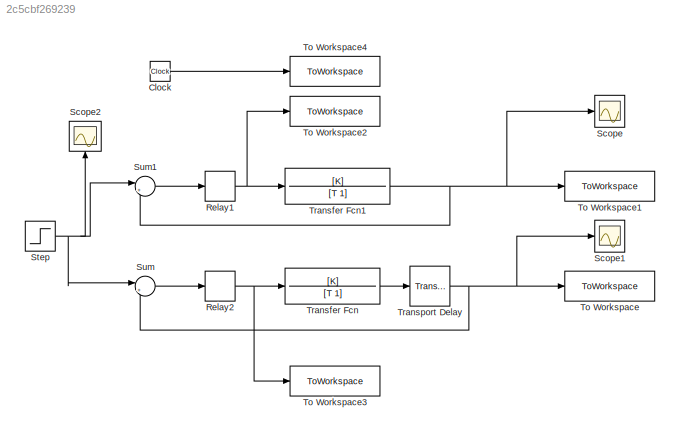
MODEL slx_2c5cbf269239
KIND model
CONFIG AbsTol = auto
CONFIG EnableMultiTasking = off
CONFIG FixedStep = auto
CONFIG MaxStep = 0.1
CONFIG MinStep = auto
CONFIG RelTol = 1e-3
CONFIG SampleTimeConstraint = Unconstrained
CONFIG SolverName = VariableStepAuto
CONFIG StartTime = 0.0
CONFIG StopTime = t_simulation
BLOCK [Clock] Clock
BLOCK [Relay] Relay1
  OffSwitchValue = min
  OnSwitchValue = max
BLOCK [Relay] Relay2
  OffSwitchValue = min
  OnSwitchValue = max
BLOCK [Scope] Scope
  Floating = off
  NumInputPorts = 1
  ScopeSpecificationString = Simulink.scopes.TimeScopeBlockCfg('CurrentConfiguration', extmgr.ConfigurationSet(extmgr.Configuration('Core','General UI',true),extmgr.Configuration('Core','Source UI',true),extmgr.Configuration('Sources','WiredSimulink',true),extmgr.Configuration('Visuals','Time Domain',true,'SerializedDisplays',{struct('MinYLimReal','-0.2375','MaxYLimReal','2.1375','YLabelReal','','MinYLimMag','0.00000','MaxYLi...<+1357ch>
BLOCK [Scope] Scope1
  Floating = off
  NumInputPorts = 1
  ScopeSpecificationString = Simulink.scopes.TimeScopeBlockCfg('CurrentConfiguration', extmgr.ConfigurationSet(extmgr.Configuration('Core','General UI',true),extmgr.Configuration('Core','Source UI',true),extmgr.Configuration('Sources','WiredSimulink',true,'DataLoggingVariableName','ScopeData1'),extmgr.Configuration('Visuals','Time Domain',true,'SerializedDisplays',{struct('MinYLimReal','-0.31471','MaxYLimReal','2.83243','YLab...<+1374ch>
BLOCK [Scope] Scope2
  Floating = off
  NameLocation = right
  NumInputPorts = 1
  ScopeSpecificationString = Simulink.scopes.TimeScopeBlockCfg('CurrentConfiguration', extmgr.ConfigurationSet(extmgr.Configuration('Core','General UI',true),extmgr.Configuration('Core','Source UI',true),extmgr.Configuration('Sources','WiredSimulink',true,'DataLoggingVariableName','ScopeData2'),extmgr.Configuration('Visuals','Time Domain',true,'SerializedDisplays',{struct('MinYLimReal','-0.1875','MaxYLimReal','1.6875','YLabel...<+1357ch>
BLOCK [Step] Step
  After = Final_value
  Before = Value_0
  SampleTime = 0
  Time = t_start
BLOCK [Sum] Sum
  Inputs = |+-
BLOCK [Sum] Sum1
  Inputs = |+-
BLOCK [ToWorkspace] To Workspace
  FixptAsFi = on
  MaxDataPoints = inf
  SampleTime = -1
  VariableName = y1
BLOCK [ToWorkspace] To Workspace1
  FixptAsFi = on
  MaxDataPoints = inf
  SampleTime = -1
  VariableName = y0
BLOCK [ToWorkspace] To Workspace2
  FixptAsFi = on
  MaxDataPoints = inf
  SampleTime = -1
  VariableName = e0
BLOCK [ToWorkspace] To Workspace3
  FixptAsFi = on
  MaxDataPoints = inf
  SampleTime = -1
  VariableName = e1
BLOCK [ToWorkspace] To Workspace4
  FixptAsFi = on
  MaxDataPoints = inf
  SampleTime = -1
  VariableName = t
BLOCK [TransferFcn] Transfer Fcn
  Denominator = [T 1]
  Numerator = [K]
BLOCK [TransferFcn] Transfer Fcn1
  Denominator = [T 1]
  Numerator = [K]
BLOCK [TransportDelay] Transport Delay
  DelayTime = t0
LINE Clock:1 -> To Workspace4:1
NET Relay1:1 -> To Workspace2:1, Transfer Fcn1:1
NET Relay2:1 -> To Workspace3:1, Transfer Fcn:1
NET Step:1 -> Scope2:1, Sum1:1, Sum:1
LINE Sum1:1 -> Relay1:1
LINE Sum:1 -> Relay2:1
NET Transfer Fcn1:1 -> Scope:1, Sum1:2, To Workspace1:1
LINE Transfer Fcn:1 -> Transport Delay:1
NET Transport Delay:1 -> Scope1:1, Sum:2, To Workspace:1
note: NET lines group one-source signal fan-out (src -> all destinations, sorted); 1:1 wires keep LINE
